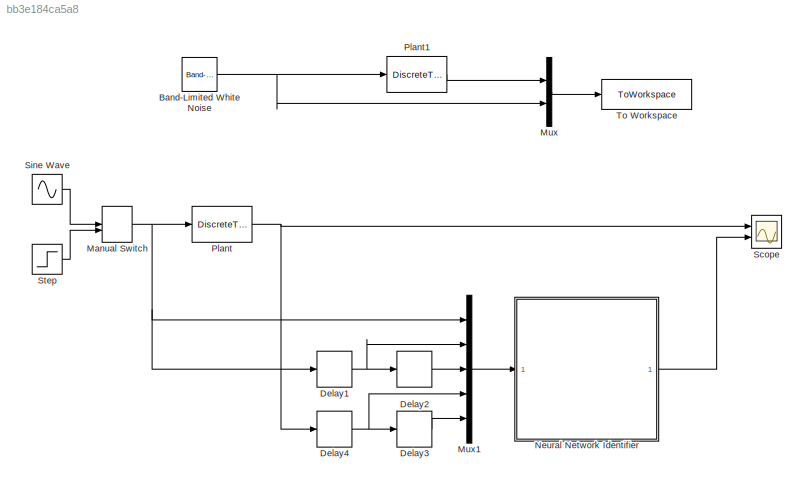
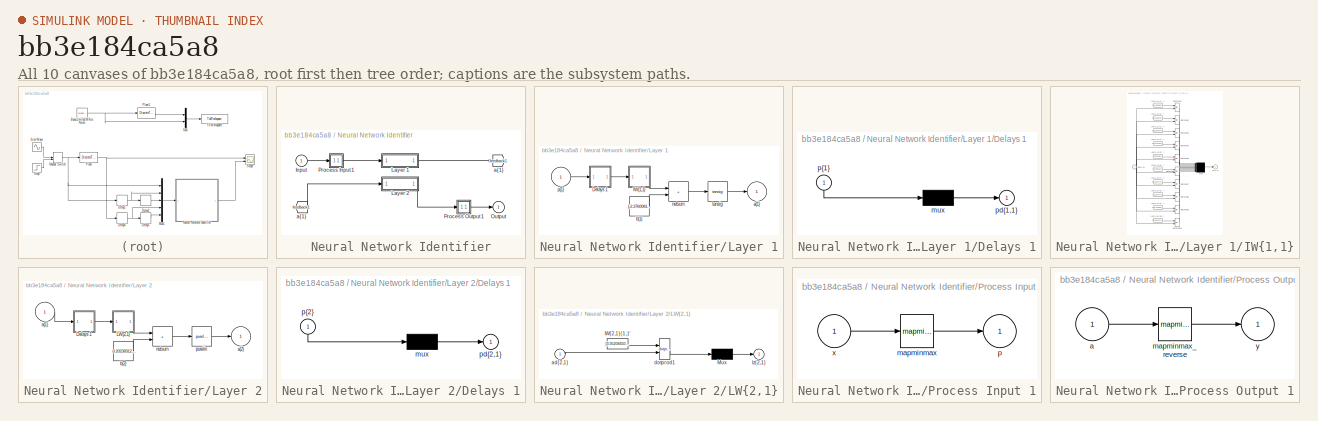
[diagram: thumbnail index - all 10 canvases of the model, root first then tree order]
MODEL slx_bb3e184ca5a8
KIND model
CONFIG AbsTol = auto
CONFIG EnableMultiTasking = on
CONFIG FixedStep = 0.05
CONFIG MaxStep = auto
CONFIG MinStep = auto
CONFIG RelTol = 1e-3
CONFIG SampleTimeConstraint = Unconstrained
CONFIG SolverName = FixedStepDiscrete
CONFIG StartTime = 0.0
CONFIG StopTime = 5
BLOCK [Reference] Band-Limited White Noise  REF=simulink/Sources/Band-Limited
White Noise
  Commented = on
  Ports = [0, 1]
  SourceBlock = simulink/Sources/Band-Limited\nWhite Noise
  SourceProductBaseCode = SL
  SourceType = Band-Limited White Noise.
BLOCK [Delay] Delay1
  DelayLength = 1
  InitialCondition = 0
  InputPortMap = u0
  Ports = [1, 1]
BLOCK [Delay] Delay2
  DelayLength = 1
  InitialCondition = 0
  InputPortMap = u0
  Ports = [1, 1]
BLOCK [Delay] Delay3
  DelayLength = 1
  InitialCondition = 0
  InputPortMap = u0
  Ports = [1, 1]
BLOCK [Delay] Delay4
  DelayLength = 1
  InitialCondition = 0
  InputPortMap = u0
  Ports = [1, 1]
BLOCK [ManualSwitch] Manual Switch
  CurrentSetting = 0
BLOCK [Mux] Mux
  Commented = on
  DisplayOption = bar
  Inputs = 2
  Ports = [2, 1]
BLOCK [Mux] Mux1
  DisplayOption = bar
  Inputs = 5
  Ports = [5, 1]
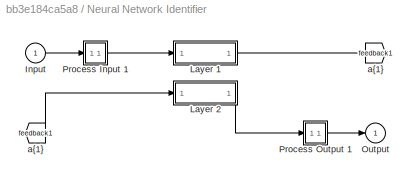
BLOCK [SubSystem] Neural Network Identifier
  Ports = [1, 1]
  RequestExecContextInheritance = off
BLOCK [From] Neural Network Identifier/ a{1} 
  GotoTag = feedback1
BLOCK [Inport] Neural Network Identifier/Input
  PortDimensions = 5
BLOCK [SubSystem] Neural Network Identifier/Layer 1
  Ports = [1, 1]
  RequestExecContextInheritance = off
BLOCK [SubSystem] Neural Network Identifier/Layer 1/Delays 1
  Ports = [1, 1]
  RequestExecContextInheritance = off
BLOCK [Mux] Neural Network Identifier/Layer 1/Delays 1/mux
  Inputs = 1
  Ports = [1, 1]
BLOCK [Outport] Neural Network Identifier/Layer 1/Delays 1/pd{1,1}
BLOCK [Inport] Neural Network Identifier/Layer 1/Delays 1/p{1}
  NameLocation = left
  PortDimensions = 5
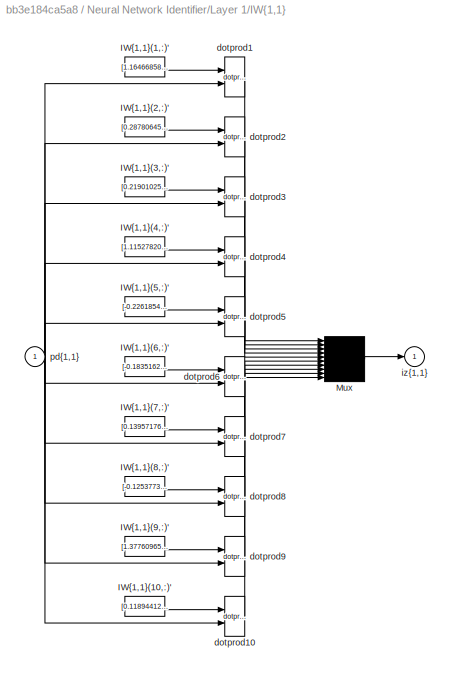
BLOCK [SubSystem] Neural Network Identifier/Layer 1/IW{1,1}
  Ports = [1, 1]
  RequestExecContextInheritance = off
BLOCK [Constant] Neural Network Identifier/Layer 1/IW{1,1}/IW{1,1}(1,:)'
  Value = [1.164668587593747250963360784226097166538238525390625;-1.4955615959242944956741894202423281967639923095703125;0.6473567355508949017206532516865991055965423583984375;0.6973553613051055588556437214720062911510467529296875;-0.422134640804221084042779921219334937632083892822265625]
BLOCK [Constant] Neural Network Identifier/Layer 1/IW{1,1}/IW{1,1}(10,:)'
  Value = [0.11894412905974798000396930319766397587954998016357421875;0.95383421870035667300413706470862962305545806884765625;-0.49341727543733771010892041886108927428722381591796875;-1.087130400758697046370571115403436124324798583984375;0.97005817200782085141241850578808225691318511962890625]
BLOCK [Constant] Neural Network Identifier/Layer 1/IW{1,1}/IW{1,1}(2,:)'
  Value = [0.2878064596610252490194170604809187352657318115234375;0.88469952463244949658616178567172028124332427978515625;-0.1308278721946367351147699764624121598899364471435546875;-0.86679909420552736509790747732040472328662872314453125;0.620952329290821669616207145736552774906158447265625]
BLOCK [Constant] Neural Network Identifier/Layer 1/IW{1,1}/IW{1,1}(3,:)'
  Value = [0.2190102573993440715494074311209260486066341400146484375;1.0478932449333446808026337748742662370204925537109375;0.375537017098276582061089357011951506137847900390625;-1.111309385487312173523832825594581663608551025390625;0.324882763128949481057361481362022459506988525390625]
BLOCK [Constant] Neural Network Identifier/Layer 1/IW{1,1}/IW{1,1}(4,:)'
  Value = [1.115278208985208241443842780427075922489166259765625;-0.037170031941669852415532915301810135133564472198486328125;1.414483987269125719876683433540165424346923828125;-1.253671577369294798387500122771598398685455322265625;0.7849815233993382435073726810514926910400390625]
BLOCK [Constant] Neural Network Identifier/Layer 1/IW{1,1}/IW{1,1}(5,:)'
  Value = [-0.22618547595436522268386170253506861627101898193359375;0.710053020028744708014301068033091723918914794921875;0.0969156878662705556504164405851042829453945159912109375;-0.969635513902780576955819924478419125080108642578125;0.342776638110807552184411406415165401995182037353515625]
BLOCK [Constant] Neural Network Identifier/Layer 1/IW{1,1}/IW{1,1}(6,:)'
  Value = [-0.1835162514254120857959406976078753359615802764892578125;-0.9159629141564986642976009534322656691074371337890625;0.090815255868997246668783418499515391886234283447265625;0.96597456340708653943494255145196802914142608642578125;-0.60838021732975622324346431923913769423961639404296875]
BLOCK [Constant] Neural Network Identifier/Layer 1/IW{1,1}/IW{1,1}(7,:)'
  Value = [0.1395717619342830839723745839364710263907909393310546875;-0.6294089438567513905553596487152390182018280029296875;0.260243600522160389854064987957826815545558929443359375;0.81446794325207549913869797819643281400203704833984375;-0.5707527430229835108121960729476995766162872314453125]
BLOCK [Constant] Neural Network Identifier/Layer 1/IW{1,1}/IW{1,1}(8,:)'
  Value = [-0.125377392351545047244343322745407931506633758544921875;1.904466220294918077371448816847987473011016845703125;-0.392685973483887951207549349419423379004001617431640625;-0.58939916029301553379582401248626410961151123046875;1.0714059577009618084986186659079976379871368408203125]
BLOCK [Constant] Neural Network Identifier/Layer 1/IW{1,1}/IW{1,1}(9,:)'
  Value = [1.377609659040131884211177748511545360088348388671875;0.6587172479566516525295583051047287881374359130859375;0.69408994738210483266271921820589341223239898681640625;1.116314524586125234151268159621395170688629150390625;0.5377098531454194141332436629454605281352996826171875]
BLOCK [Mux] Neural Network Identifier/Layer 1/IW{1,1}/Mux
  Inputs = 10
  Ports = [10, 1]
BLOCK [Reference] Neural Network Identifier/Layer 1/IW{1,1}/dotprod1  REF=neural/Weight Functions/dotprod
  Ports = [2, 1]
  SourceBlock = neural/Weight Functions/dotprod
  SourceProductBaseCode = NN
  SourceType = DOTPROD
BLOCK [Reference] Neural Network Identifier/Layer 1/IW{1,1}/dotprod10  REF=neural/Weight Functions/dotprod
  Ports = [2, 1]
  SourceBlock = neural/Weight Functions/dotprod
  SourceProductBaseCode = NN
  SourceType = DOTPROD
BLOCK [Reference] Neural Network Identifier/Layer 1/IW{1,1}/dotprod2  REF=neural/Weight Functions/dotprod
  Ports = [2, 1]
  SourceBlock = neural/Weight Functions/dotprod
  SourceProductBaseCode = NN
  SourceType = DOTPROD
BLOCK [Reference] Neural Network Identifier/Layer 1/IW{1,1}/dotprod3  REF=neural/Weight Functions/dotprod
  Ports = [2, 1]
  SourceBlock = neural/Weight Functions/dotprod
  SourceProductBaseCode = NN
  SourceType = DOTPROD
BLOCK [Reference] Neural Network Identifier/Layer 1/IW{1,1}/dotprod4  REF=neural/Weight Functions/dotprod
  Ports = [2, 1]
  SourceBlock = neural/Weight Functions/dotprod
  SourceProductBaseCode = NN
  SourceType = DOTPROD
BLOCK [Reference] Neural Network Identifier/Layer 1/IW{1,1}/dotprod5  REF=neural/Weight Functions/dotprod
  Ports = [2, 1]
  SourceBlock = neural/Weight Functions/dotprod
  SourceProductBaseCode = NN
  SourceType = DOTPROD
BLOCK [Reference] Neural Network Identifier/Layer 1/IW{1,1}/dotprod6  REF=neural/Weight Functions/dotprod
  Ports = [2, 1]
  SourceBlock = neural/Weight Functions/dotprod
  SourceProductBaseCode = NN
  SourceType = DOTPROD
BLOCK [Reference] Neural Network Identifier/Layer 1/IW{1,1}/dotprod7  REF=neural/Weight Functions/dotprod
  Ports = [2, 1]
  SourceBlock = neural/Weight Functions/dotprod
  SourceProductBaseCode = NN
  SourceType = DOTPROD
BLOCK [Reference] Neural Network Identifier/Layer 1/IW{1,1}/dotprod8  REF=neural/Weight Functions/dotprod
  Ports = [2, 1]
  SourceBlock = neural/Weight Functions/dotprod
  SourceProductBaseCode = NN
  SourceType = DOTPROD
BLOCK [Reference] Neural Network Identifier/Layer 1/IW{1,1}/dotprod9  REF=neural/Weight Functions/dotprod
  Ports = [2, 1]
  SourceBlock = neural/Weight Functions/dotprod
  SourceProductBaseCode = NN
  SourceType = DOTPROD
BLOCK [Outport] Neural Network Identifier/Layer 1/IW{1,1}/iz{1,1}
BLOCK [Inport] Neural Network Identifier/Layer 1/IW{1,1}/pd{1,1}
  PortDimensions = 5
BLOCK [Outport] Neural Network Identifier/Layer 1/a{1}
  InitialOutput = [0;0;0;0;0;0;0;0;0;0]
BLOCK [Constant] Neural Network Identifier/Layer 1/b{1}
  Value = [-2.37600818163215166123336530290544033050537109375;-0.91230072789870908511744573843316175043582916259765625;0.90720750155177387608063099833088926970958709716796875;-0.664693369077184570414829067885875701904296875;0.10861970075306019711813831918334471993148326873779296875;-0.68869611797315488654902537746238522231578826904296875;-0.5089758421745926852963748387992382049560546875;1.408563193841923411...<+141ch>
BLOCK [Sum] Neural Network Identifier/Layer 1/netsum
  IconShape = rectangular
  InputSameDT = on
  Inputs = 2
  OutDataTypeStr = Inherit: Same as first input
  Ports = [2, 1]
  SaturateOnIntegerOverflow = on
BLOCK [Inport] Neural Network Identifier/Layer 1/p{1}
  PortDimensions = 5
BLOCK [Reference] Neural Network Identifier/Layer 1/tansig  REF=neural/Transfer Functions/tansig
  Ports = [1, 1]
  SourceBlock = neural/Transfer Functions/tansig
  SourceProductBaseCode = NN
  SourceType = TANSIG
BLOCK [SubSystem] Neural Network Identifier/Layer 2
  Ports = [1, 1]
  RequestExecContextInheritance = off
BLOCK [SubSystem] Neural Network Identifier/Layer 2/Delays 1
  Ports = [1, 1]
  RequestExecContextInheritance = off
BLOCK [Mux] Neural Network Identifier/Layer 2/Delays 1/mux
  Inputs = 1
  Ports = [1, 1]
BLOCK [Outport] Neural Network Identifier/Layer 2/Delays 1/pd{2,1}
BLOCK [Inport] Neural Network Identifier/Layer 2/Delays 1/p{2}
  NameLocation = left
  PortDimensions = 10
BLOCK [SubSystem] Neural Network Identifier/Layer 2/LW{2,1}
  Ports = [1, 1]
  RequestExecContextInheritance = off
BLOCK [Constant] Neural Network Identifier/Layer 2/LW{2,1}/IW{2,1}(1,:)'
  Value = [3.9520845067429215724703894796476788542349822819232940673828125e-05;1.2635566422397215280426507888478226959705352783203125;0.490357050479579281709874294392648153007030487060546875;-2.49796916799602955277202764872157558784238062798976898193359375e-06;-0.73024310686446314289099746019928716123104095458984375;-2.809640778365502189473090766114182770252227783203125;1.05580034052919646825330346473492681...<+210ch>
BLOCK [Mux] Neural Network Identifier/Layer 2/LW{2,1}/Mux
  Inputs = 1
  Ports = [1, 1]
BLOCK [Inport] Neural Network Identifier/Layer 2/LW{2,1}/ad{2,1}
  PortDimensions = 10
BLOCK [Reference] Neural Network Identifier/Layer 2/LW{2,1}/dotprod1  REF=neural/Weight Functions/dotprod
  Ports = [2, 1]
  SourceBlock = neural/Weight Functions/dotprod
  SourceProductBaseCode = NN
  SourceType = DOTPROD
BLOCK [Outport] Neural Network Identifier/Layer 2/LW{2,1}/lz{2,1}
BLOCK [Inport] Neural Network Identifier/Layer 2/a{1} 
  PortDimensions = 10
BLOCK [Outport] Neural Network Identifier/Layer 2/a{2}
  InitialOutput = 0
BLOCK [Constant] Neural Network Identifier/Layer 2/b{2}
  Value = -0.2023831294712509498712194044856005348265171051025390625
BLOCK [Sum] Neural Network Identifier/Layer 2/netsum
  IconShape = rectangular
  InputSameDT = on
  Inputs = 2
  OutDataTypeStr = Inherit: Same as first input
  Ports = [2, 1]
  SaturateOnIntegerOverflow = on
BLOCK [Reference] Neural Network Identifier/Layer 2/purelin  REF=neural/Transfer Functions/purelin
  Ports = [1, 1]
  SourceBlock = neural/Transfer Functions/purelin
  SourceProductBaseCode = NN
  SourceType = PURELIN
BLOCK [Outport] Neural Network Identifier/Output
  InitialOutput = 0
BLOCK [SubSystem] Neural Network Identifier/Process Input 1
  Ports = [1, 1]
  RequestExecContextInheritance = off
BLOCK [Reference] Neural Network Identifier/Process Input 1/mapminmax  REF=neural/Processing Functions/mapminmax
  Ports = [1, 1]
  SourceBlock = neural/Processing Functions/mapminmax
  SourceProductBaseCode = NN
  SourceType = MAPMINMAX Preprocess
BLOCK [Outport] Neural Network Identifier/Process Input 1/p
  PortDimensions = 5
BLOCK [Inport] Neural Network Identifier/Process Input 1/x
  PortDimensions = 5
BLOCK [SubSystem] Neural Network Identifier/Process Output 1
  Ports = [1, 1]
  RequestExecContextInheritance = off
BLOCK [Inport] Neural Network Identifier/Process Output 1/a
  PortDimensions = 1
BLOCK [Reference] Neural Network Identifier/Process Output 1/mapminmax_reverse  REF=neural/Processing Functions/mapminmax_reverse
  Ports = [1, 1]
  SourceBlock = neural/Processing Functions/mapminmax_reverse
  SourceProductBaseCode = NN
  SourceType = MAPMINMAX Reverse Process
BLOCK [Outport] Neural Network Identifier/Process Output 1/y
  PortDimensions = 1
BLOCK [Goto] Neural Network Identifier/a{1}
  GotoTag = feedback1
BLOCK [DiscreteTransferFcn] Plant
  Denominator = [1 -0.5]
  InputPortMap = u0
  Numerator = [1 0]
  Ports = [1, 1]
BLOCK [DiscreteTransferFcn] Plant1
  Commented = on
  Denominator = [1 -0.5]
  InputPortMap = u0
  Numerator = [1 0]
  Ports = [1, 1]
BLOCK [Scope] Scope
  Floating = off
  NumInputPorts = 2
  Ports = [2]
  ScopeSpecificationString = Simulink.scopes.TimeScopeBlockCfg('CurrentConfiguration', extmgr.ConfigurationSet(extmgr.Configuration('Core','General UI',true),extmgr.Configuration('Core','Source UI',true),extmgr.Configuration('Sources','WiredSimulink',true),extmgr.Configuration('Visuals','Time Domain',true,'SerializedDisplays',{struct('MinYLimReal','-2.49357','MaxYLimReal','2.49329','YLabelReal','','MinYLimMag','0.00000','MaxY...<+1492ch>
BLOCK [Sin] Sine Wave
  Ports = [0, 1]
  SampleTime = 0
BLOCK [Step] Step
  SampleTime = 0
BLOCK [ToWorkspace] To Workspace
  Commented = on
  FixptAsFi = on
  MaxDataPoints = inf
  Ports = [1]
  SampleTime = -1
  SaveFormat = Timeseries
  VariableName = simout
NET Band-Limited White Noise:1 -> Mux:2, Plant1:1
NET Delay1:1 -> Delay2:1, Mux1:2
LINE Delay2:1 -> Mux1:3
LINE Delay3:1 -> Mux1:5
NET Delay4:1 -> Delay3:1, Mux1:4
NET Manual Switch:1 -> Delay1:1, Mux1:1, Plant:1
LINE Mux1:1 -> Neural Network Identifier:1
LINE Mux:1 -> To Workspace:1
LINE Neural Network Identifier/ a{1} :1 -> Neural Network Identifier/Layer 2:1
LINE Neural Network Identifier/Input:1 -> Neural Network Identifier/Process Input 1:1
LINE Neural Network Identifier/Layer 1/Delays 1/mux:1 -> Neural Network Identifier/Layer 1/Delays 1/pd{1,1}:1
LINE Neural Network Identifier/Layer 1/Delays 1/p{1}:1 -> Neural Network Identifier/Layer 1/Delays 1/mux:1
LINE Neural Network Identifier/Layer 1/Delays 1:1 -> Neural Network Identifier/Layer 1/IW{1,1}:1
LINE Neural Network Identifier/Layer 1/IW{1,1}/IW{1,1}(1,:)':1 -> Neural Network Identifier/Layer 1/IW{1,1}/dotprod1:1
LINE Neural Network Identifier/Layer 1/IW{1,1}/IW{1,1}(10,:)':1 -> Neural Network Identifier/Layer 1/IW{1,1}/dotprod10:1
LINE Neural Network Identifier/Layer 1/IW{1,1}/IW{1,1}(2,:)':1 -> Neural Network Identifier/Layer 1/IW{1,1}/dotprod2:1
LINE Neural Network Identifier/Layer 1/IW{1,1}/IW{1,1}(3,:)':1 -> Neural Network Identifier/Layer 1/IW{1,1}/dotprod3:1
LINE Neural Network Identifier/Layer 1/IW{1,1}/IW{1,1}(4,:)':1 -> Neural Network Identifier/Layer 1/IW{1,1}/dotprod4:1
LINE Neural Network Identifier/Layer 1/IW{1,1}/IW{1,1}(5,:)':1 -> Neural Network Identifier/Layer 1/IW{1,1}/dotprod5:1
LINE Neural Network Identifier/Layer 1/IW{1,1}/IW{1,1}(6,:)':1 -> Neural Network Identifier/Layer 1/IW{1,1}/dotprod6:1
LINE Neural Network Identifier/Layer 1/IW{1,1}/IW{1,1}(7,:)':1 -> Neural Network Identifier/Layer 1/IW{1,1}/dotprod7:1
LINE Neural Network Identifier/Layer 1/IW{1,1}/IW{1,1}(8,:)':1 -> Neural Network Identifier/Layer 1/IW{1,1}/dotprod8:1
LINE Neural Network Identifier/Layer 1/IW{1,1}/IW{1,1}(9,:)':1 -> Neural Network Identifier/Layer 1/IW{1,1}/dotprod9:1
LINE Neural Network Identifier/Layer 1/IW{1,1}/Mux:1 -> Neural Network Identifier/Layer 1/IW{1,1}/iz{1,1}:1
LINE Neural Network Identifier/Layer 1/IW{1,1}/dotprod10:1 -> Neural Network Identifier/Layer 1/IW{1,1}/Mux:10
LINE Neural Network Identifier/Layer 1/IW{1,1}/dotprod1:1 -> Neural Network Identifier/Layer 1/IW{1,1}/Mux:1
LINE Neural Network Identifier/Layer 1/IW{1,1}/dotprod2:1 -> Neural Network Identifier/Layer 1/IW{1,1}/Mux:2
LINE Neural Network Identifier/Layer 1/IW{1,1}/dotprod3:1 -> Neural Network Identifier/Layer 1/IW{1,1}/Mux:3
LINE Neural Network Identifier/Layer 1/IW{1,1}/dotprod4:1 -> Neural Network Identifier/Layer 1/IW{1,1}/Mux:4
LINE Neural Network Identifier/Layer 1/IW{1,1}/dotprod5:1 -> Neural Network Identifier/Layer 1/IW{1,1}/Mux:5
LINE Neural Network Identifier/Layer 1/IW{1,1}/dotprod6:1 -> Neural Network Identifier/Layer 1/IW{1,1}/Mux:6
LINE Neural Network Identifier/Layer 1/IW{1,1}/dotprod7:1 -> Neural Network Identifier/Layer 1/IW{1,1}/Mux:7
LINE Neural Network Identifier/Layer 1/IW{1,1}/dotprod8:1 -> Neural Network Identifier/Layer 1/IW{1,1}/Mux:8
LINE Neural Network Identifier/Layer 1/IW{1,1}/dotprod9:1 -> Neural Network Identifier/Layer 1/IW{1,1}/Mux:9
NET Neural Network Identifier/Layer 1/IW{1,1}/pd{1,1}:1 -> Neural Network Identifier/Layer 1/IW{1,1}/dotprod10:2, Neural Network Identifier/Layer 1/IW{1,1}/dotprod1:2, Neural Network Identifier/Layer 1/IW{1,1}/dotprod2:2, Neural Network Identifier/Layer 1/IW{1,1}/dotprod3:2, Neural Network Identifier/Layer 1/IW{1,1}/dotprod4:2, Neural Network Identifier/Layer 1/IW{1,1}/dotprod5:2, Neural Network Identifier/Layer 1/IW{1,1}/dotprod6:2, Neural Network Identifier/Layer 1/IW{1,1}/dotprod7:2, Neural Network Identifier/Layer 1/IW{1,1}/dotprod8:2, Neural Network Identifier/Layer 1/IW{1,1}/dotprod9:2
LINE Neural Network Identifier/Layer 1/IW{1,1}:1 -> Neural Network Identifier/Layer 1/netsum:1
LINE Neural Network Identifier/Layer 1/b{1}:1 -> Neural Network Identifier/Layer 1/netsum:2
LINE Neural Network Identifier/Layer 1/netsum:1 -> Neural Network Identifier/Layer 1/tansig:1
LINE Neural Network Identifier/Layer 1/p{1}:1 -> Neural Network Identifier/Layer 1/Delays 1:1
LINE Neural Network Identifier/Layer 1/tansig:1 -> Neural Network Identifier/Layer 1/a{1}:1
LINE Neural Network Identifier/Layer 1:1 -> Neural Network Identifier/a{1}:1
LINE Neural Network Identifier/Layer 2/Delays 1/mux:1 -> Neural Network Identifier/Layer 2/Delays 1/pd{2,1}:1
LINE Neural Network Identifier/Layer 2/Delays 1/p{2}:1 -> Neural Network Identifier/Layer 2/Delays 1/mux:1
LINE Neural Network Identifier/Layer 2/Delays 1:1 -> Neural Network Identifier/Layer 2/LW{2,1}:1
LINE Neural Network Identifier/Layer 2/LW{2,1}/IW{2,1}(1,:)':1 -> Neural Network Identifier/Layer 2/LW{2,1}/dotprod1:1
LINE Neural Network Identifier/Layer 2/LW{2,1}/Mux:1 -> Neural Network Identifier/Layer 2/LW{2,1}/lz{2,1}:1
LINE Neural Network Identifier/Layer 2/LW{2,1}/ad{2,1}:1 -> Neural Network Identifier/Layer 2/LW{2,1}/dotprod1:2
LINE Neural Network Identifier/Layer 2/LW{2,1}/dotprod1:1 -> Neural Network Identifier/Layer 2/LW{2,1}/Mux:1
LINE Neural Network Identifier/Layer 2/LW{2,1}:1 -> Neural Network Identifier/Layer 2/netsum:1
LINE Neural Network Identifier/Layer 2/a{1} :1 -> Neural Network Identifier/Layer 2/Delays 1:1
LINE Neural Network Identifier/Layer 2/b{2}:1 -> Neural Network Identifier/Layer 2/netsum:2
LINE Neural Network Identifier/Layer 2/netsum:1 -> Neural Network Identifier/Layer 2/purelin:1
LINE Neural Network Identifier/Layer 2/purelin:1 -> Neural Network Identifier/Layer 2/a{2}:1
LINE Neural Network Identifier/Layer 2:1 -> Neural Network Identifier/Process Output 1:1
LINE Neural Network Identifier/Process Input 1/mapminmax:1 -> Neural Network Identifier/Process Input 1/p:1
LINE Neural Network Identifier/Process Input 1/x:1 -> Neural Network Identifier/Process Input 1/mapminmax:1
LINE Neural Network Identifier/Process Input 1:1 -> Neural Network Identifier/Layer 1:1
LINE Neural Network Identifier/Process Output 1/a:1 -> Neural Network Identifier/Process Output 1/mapminmax_reverse:1
LINE Neural Network Identifier/Process Output 1/mapminmax_reverse:1 -> Neural Network Identifier/Process Output 1/y:1
LINE Neural Network Identifier/Process Output 1:1 -> Neural Network Identifier/Output:1
LINE Neural Network Identifier:1 -> Scope:2
LINE Plant1:1 -> Mux:1
NET Plant:1 -> Delay4:1, Scope:1
LINE Sine Wave:1 -> Manual Switch:1
LINE Step:1 -> Manual Switch:2
note: NET lines group one-source signal fan-out (src -> all destinations, sorted); 1:1 wires keep LINE
